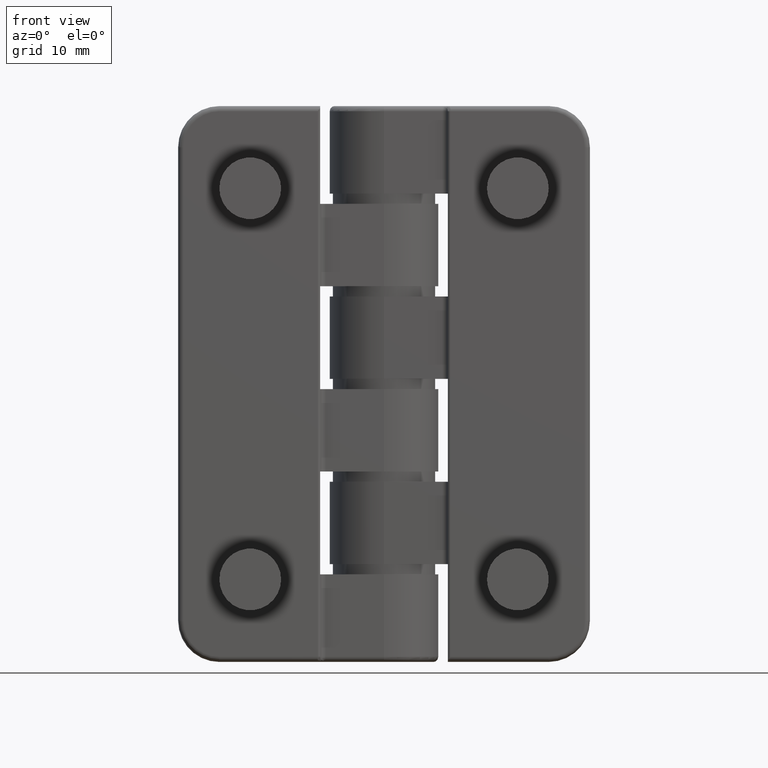
[diagram: clean part render]
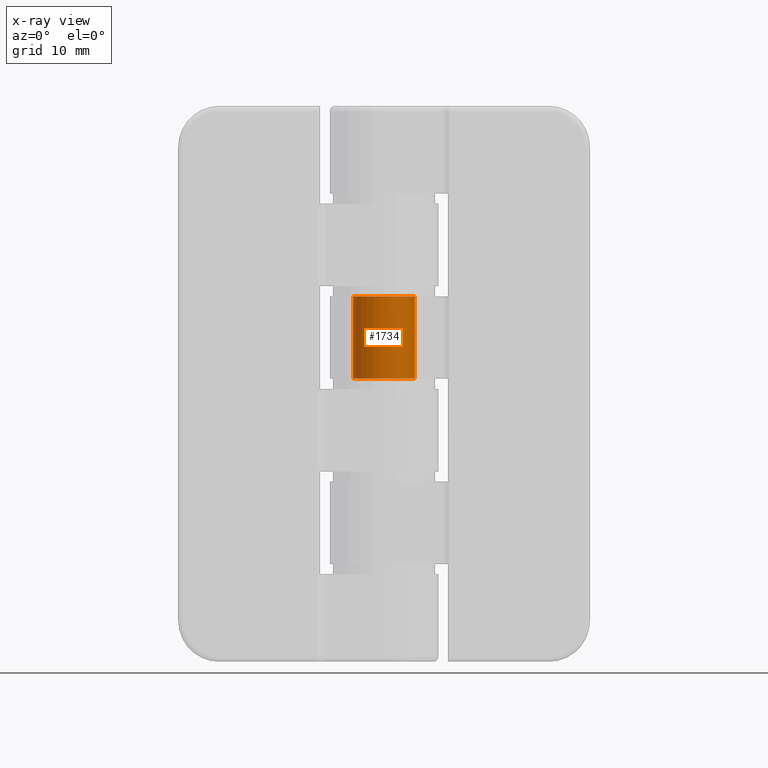
[diagram: x-ray — body ghosted, one internal face saturated and labeled with its STEP entity id]
A machine part, front view, then the same camera in x-ray: the body is ghosted and one INTERNAL B-rep face — a face not visible from any outside direction — is saturated and labeled: STEP entity #1734.
In plain terms, the highlighted cylindrical surface (bore or boss wall) has radius 3 mm, axis along (0, 0, -1).
Its self-contained STEP definition (entity closure, byte-faithful):
#329=FACE_BOUND('',#498,.T.);
#378=FACE_OUTER_BOUND('',#497,.T.);
#497=EDGE_LOOP('',(#1197));
#498=EDGE_LOOP('',(#1198));
#665=CIRCLE('',#1863,3.);
#666=CIRCLE('',#1864,3.);
#789=VERTEX_POINT('',#2701);
#790=VERTEX_POINT('',#2703);
#955=EDGE_CURVE('',#789,#789,#665,.T.);
#956=EDGE_CURVE('',#790,#790,#666,.T.);
#1197=ORIENTED_EDGE('',*,*,#955,.F.);
#1198=ORIENTED_EDGE('',*,*,#956,.F.);
#1681=CYLINDRICAL_SURFACE('',#1862,3.);
#1734=ADVANCED_FACE('',(#378,#329),#1681,.F.);
#1862=AXIS2_PLACEMENT_3D('',#2700,#2107,#2108);
#1863=AXIS2_PLACEMENT_3D('',#2702,#2109,#2110);
#1864=AXIS2_PLACEMENT_3D('',#2704,#2111,#2112);
#2107=DIRECTION('center_axis',(0.,0.,-1.));
#2108=DIRECTION('ref_axis',(-1.,0.,0.));
#2109=DIRECTION('center_axis',(0.,0.,1.));
#2110=DIRECTION('ref_axis',(-1.,0.,0.));
#2111=DIRECTION('center_axis',(0.,0.,-1.));
#2112=DIRECTION('ref_axis',(-1.,0.,0.));
#2700=CARTESIAN_POINT('Origin',(-3.40610748101056E-16,5.8,27.));
#2701=CARTESIAN_POINT('',(3.,5.8,0.500000000000007));
#2702=CARTESIAN_POINT('Origin',(-3.40610748101056E-16,5.8,0.500000000000007));
#2703=CARTESIAN_POINT('',(3.,5.8,8.50000000000001));
#2704=CARTESIAN_POINT('Origin',(-3.40610748101056E-16,5.8,8.50000000000001));